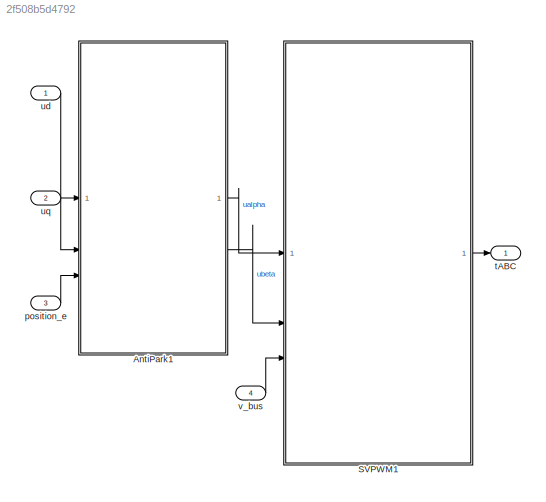
MODEL slx_2f508b5d4792
KIND model
CONFIG AbsTol = auto
CONFIG EnableMultiTasking = on
CONFIG FixedStep = auto
CONFIG MaxStep = auto
CONFIG MinStep = auto
CONFIG RelTol = 1e-3
CONFIG SampleTimeConstraint = Unconstrained
CONFIG SolverName = FixedStepDiscrete
CONFIG StartTime = 0.0
CONFIG StopTime = 5
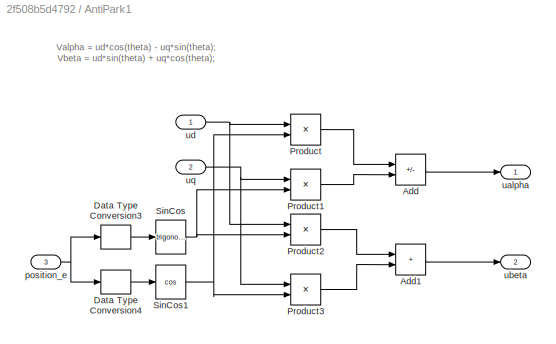
BLOCK [SubSystem] AntiPark1
BLOCK [Sum] AntiPark1/Add
  IconShape = rectangular
  Inputs = +-
BLOCK [Sum] AntiPark1/Add1
  IconShape = rectangular
BLOCK [DataTypeConversion] AntiPark1/Data Type Conversion3
  OutDataTypeStr = single
  RndMeth = Floor
  SaturateOnIntegerOverflow = off
BLOCK [DataTypeConversion] AntiPark1/Data Type Conversion4
  OutDataTypeStr = single
  RndMeth = Floor
  SaturateOnIntegerOverflow = off
BLOCK [Product] AntiPark1/Product
BLOCK [Product] AntiPark1/Product1
BLOCK [Product] AntiPark1/Product2
BLOCK [Product] AntiPark1/Product3
BLOCK [Trigonometry] AntiPark1/SinCos
BLOCK [Trigonometry] AntiPark1/SinCos1
  Operator = cos
BLOCK [Inport] AntiPark1/position_e
  Port = 3
BLOCK [Outport] AntiPark1/ualpha
  OutDataTypeStr = single
BLOCK [Outport] AntiPark1/ubeta
  OutDataTypeStr = single
  Port = 2
BLOCK [Inport] AntiPark1/ud
BLOCK [Inport] AntiPark1/uq
  Port = 2
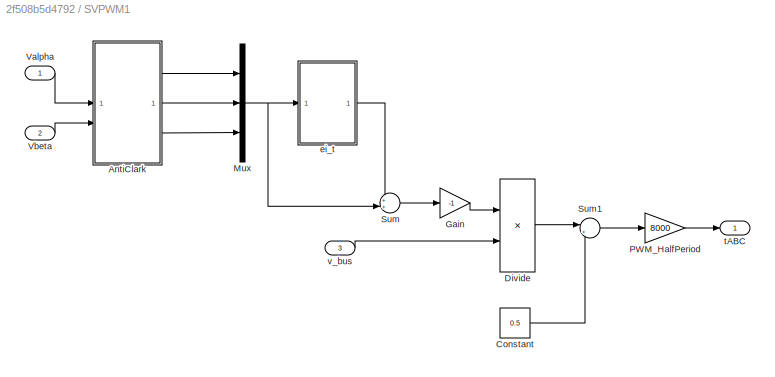
BLOCK [SubSystem] SVPWM1
  RTWSystemCode = Reusable function
  TreatAsAtomicUnit = on
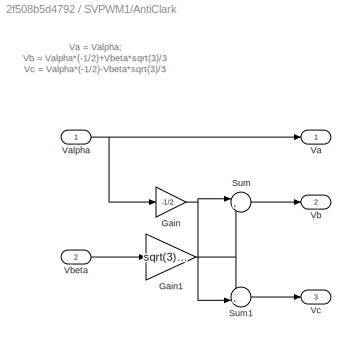
BLOCK [SubSystem] SVPWM1/AntiClark
BLOCK [Gain] SVPWM1/AntiClark/Gain
  Gain = -1/2
  OutDataTypeStr = single
BLOCK [Gain] SVPWM1/AntiClark/Gain1
  Gain = sqrt(3)/2
  OutDataTypeStr = single
BLOCK [Sum] SVPWM1/AntiClark/Sum
  Inputs = |++
  OutDataTypeStr = single
BLOCK [Sum] SVPWM1/AntiClark/Sum1
  Inputs = -+|
  OutDataTypeStr = single
BLOCK [Outport] SVPWM1/AntiClark/Va
  OutDataTypeStr = single
BLOCK [Inport] SVPWM1/AntiClark/Valpha
  OutDataTypeStr = single
BLOCK [Outport] SVPWM1/AntiClark/Vb
  OutDataTypeStr = single
  Port = 2
BLOCK [Inport] SVPWM1/AntiClark/Vbeta
  OutDataTypeStr = single
  Port = 2
BLOCK [Outport] SVPWM1/AntiClark/Vc
  OutDataTypeStr = single
  Port = 3
BLOCK [Constant] SVPWM1/Constant
  OutDataTypeStr = single
  Value = 0.5
BLOCK [Product] SVPWM1/Divide
  Inputs = */
  OutDataTypeStr = single
BLOCK [Gain] SVPWM1/Gain
  Gain = -1
  OutDataTypeStr = single
BLOCK [Mux] SVPWM1/Mux
  DisplayOption = bar
  Inputs = 3
BLOCK [Gain] SVPWM1/PWM_HalfPeriod
  Gain = 8000
  OutDataTypeStr = single
BLOCK [Sum] SVPWM1/Sum
  Inputs = ++|
  OutDataTypeStr = single
BLOCK [Sum] SVPWM1/Sum1
  Inputs = |++
  OutDataTypeStr = single
BLOCK [Inport] SVPWM1/Valpha
  OutDataTypeStr = single
BLOCK [Inport] SVPWM1/Vbeta
  OutDataTypeStr = single
  Port = 2
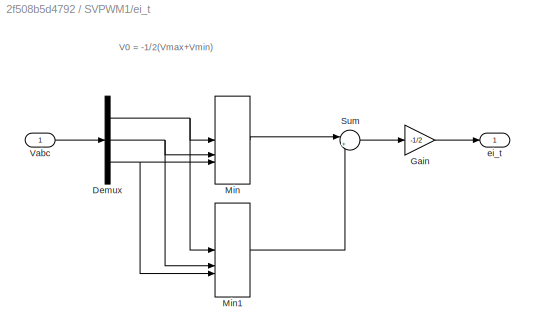
BLOCK [SubSystem] SVPWM1/ei_t
BLOCK [Demux] SVPWM1/ei_t/Demux
  Outputs = 3
BLOCK [Gain] SVPWM1/ei_t/Gain
  Gain = -1/2
  OutDataTypeStr = single
BLOCK [MinMax] SVPWM1/ei_t/Min
  Inputs = 3
  OutDataTypeStr = single
BLOCK [MinMax] SVPWM1/ei_t/Min1
  Function = max
  Inputs = 3
  OutDataTypeStr = single
BLOCK [Sum] SVPWM1/ei_t/Sum
  Inputs = |++
  OutDataTypeStr = single
BLOCK [Inport] SVPWM1/ei_t/Vabc
  OutDataTypeStr = single
BLOCK [Outport] SVPWM1/ei_t/ei_t
  OutDataTypeStr = single
BLOCK [Outport] SVPWM1/tABC
  OutDataTypeStr = single
BLOCK [Inport] SVPWM1/v_bus
  OutDataTypeStr = single
  Port = 3
BLOCK [Inport] position_e
  OutDataTypeStr = single
  Port = 3
  PortDimensions = 1
  SamplingMode = Sample based
  SignalType = real
BLOCK [Outport] tABC
  OutDataTypeStr = single
  PortDimensions = 3
  SamplingMode = Sample based
  SignalType = real
BLOCK [Inport] ud
  OutDataTypeStr = single
  PortDimensions = 1
  SamplingMode = Sample based
  SignalType = real
BLOCK [Inport] uq
  OutDataTypeStr = single
  Port = 2
  PortDimensions = 1
  SamplingMode = Sample based
  SignalType = real
BLOCK [Inport] v_bus
  OutDataTypeStr = single
  Port = 4
  PortDimensions = 1
  SamplingMode = Sample based
  SignalType = real
ANNOTATION AntiPark1: Valpha = ud*cos(theta) - uq*sin(theta); Vbeta = ud*sin(theta) + uq*cos(theta);
ANNOTATION SVPWM1/AntiClark: Va = Valpha; Vb = Valpha*(-1/2)+Vbeta*sqrt(3)/3 Vc = Valpha*(-1/2)-Vbeta*sqrt(3)/3
ANNOTATION SVPWM1/ei_t: V0 = -1/2(Vmax+Vmin)
LINE AntiPark1/Add1:1 -> AntiPark1/ubeta:1
LINE AntiPark1/Add:1 -> AntiPark1/ualpha:1
LINE AntiPark1/Data Type Conversion3:1 -> AntiPark1/SinCos:1
LINE AntiPark1/Data Type Conversion4:1 -> AntiPark1/SinCos1:1
LINE AntiPark1/Product1:1 -> AntiPark1/Add:2
LINE AntiPark1/Product2:1 -> AntiPark1/Add1:1
LINE AntiPark1/Product3:1 -> AntiPark1/Add1:2
LINE AntiPark1/Product:1 -> AntiPark1/Add:1
NET AntiPark1/SinCos1:1 -> AntiPark1/Product3:2, AntiPark1/Product:2
NET AntiPark1/SinCos:1 -> AntiPark1/Product1:2, AntiPark1/Product2:2
NET AntiPark1/position_e:1 -> AntiPark1/Data Type Conversion3:1, AntiPark1/Data Type Conversion4:1
NET AntiPark1/ud:1 -> AntiPark1/Product2:1, AntiPark1/Product:1
NET AntiPark1/uq:1 -> AntiPark1/Product1:1, AntiPark1/Product3:1
LINE AntiPark1:1 -> SVPWM1:1
LINE AntiPark1:2 -> SVPWM1:2
NET SVPWM1/AntiClark/Gain1:1 -> SVPWM1/AntiClark/Sum1:1, SVPWM1/AntiClark/Sum:2
NET SVPWM1/AntiClark/Gain:1 -> SVPWM1/AntiClark/Sum1:2, SVPWM1/AntiClark/Sum:1
LINE SVPWM1/AntiClark/Sum1:1 -> SVPWM1/AntiClark/Vc:1
LINE SVPWM1/AntiClark/Sum:1 -> SVPWM1/AntiClark/Vb:1
NET SVPWM1/AntiClark/Valpha:1 -> SVPWM1/AntiClark/Gain:1, SVPWM1/AntiClark/Va:1
LINE SVPWM1/AntiClark/Vbeta:1 -> SVPWM1/AntiClark/Gain1:1
LINE SVPWM1/AntiClark:1 -> SVPWM1/Mux:1
LINE SVPWM1/AntiClark:2 -> SVPWM1/Mux:2
LINE SVPWM1/AntiClark:3 -> SVPWM1/Mux:3
LINE SVPWM1/Constant:1 -> SVPWM1/Sum1:2
LINE SVPWM1/Divide:1 -> SVPWM1/Sum1:1
LINE SVPWM1/Gain:1 -> SVPWM1/Divide:1
NET SVPWM1/Mux:1 -> SVPWM1/Sum:2, SVPWM1/ei_t:1
LINE SVPWM1/PWM_HalfPeriod:1 -> SVPWM1/tABC:1
LINE SVPWM1/Sum1:1 -> SVPWM1/PWM_HalfPeriod:1
LINE SVPWM1/Sum:1 -> SVPWM1/Gain:1
LINE SVPWM1/Valpha:1 -> SVPWM1/AntiClark:1
LINE SVPWM1/Vbeta:1 -> SVPWM1/AntiClark:2
NET SVPWM1/ei_t/Demux:1 -> SVPWM1/ei_t/Min1:1, SVPWM1/ei_t/Min:1
NET SVPWM1/ei_t/Demux:2 -> SVPWM1/ei_t/Min1:2, SVPWM1/ei_t/Min:2
NET SVPWM1/ei_t/Demux:3 -> SVPWM1/ei_t/Min1:3, SVPWM1/ei_t/Min:3
LINE SVPWM1/ei_t/Gain:1 -> SVPWM1/ei_t/ei_t:1
LINE SVPWM1/ei_t/Min1:1 -> SVPWM1/ei_t/Sum:2
LINE SVPWM1/ei_t/Min:1 -> SVPWM1/ei_t/Sum:1
LINE SVPWM1/ei_t/Sum:1 -> SVPWM1/ei_t/Gain:1
LINE SVPWM1/ei_t/Vabc:1 -> SVPWM1/ei_t/Demux:1
LINE SVPWM1/ei_t:1 -> SVPWM1/Sum:1
LINE SVPWM1/v_bus:1 -> SVPWM1/Divide:2
LINE SVPWM1:1 -> tABC:1
LINE position_e:1 -> AntiPark1:3
LINE ud:1 -> AntiPark1:1
LINE uq:1 -> AntiPark1:2
LINE v_bus:1 -> SVPWM1:3
note: NET lines group one-source signal fan-out (src -> all destinations, sorted); 1:1 wires keep LINE
